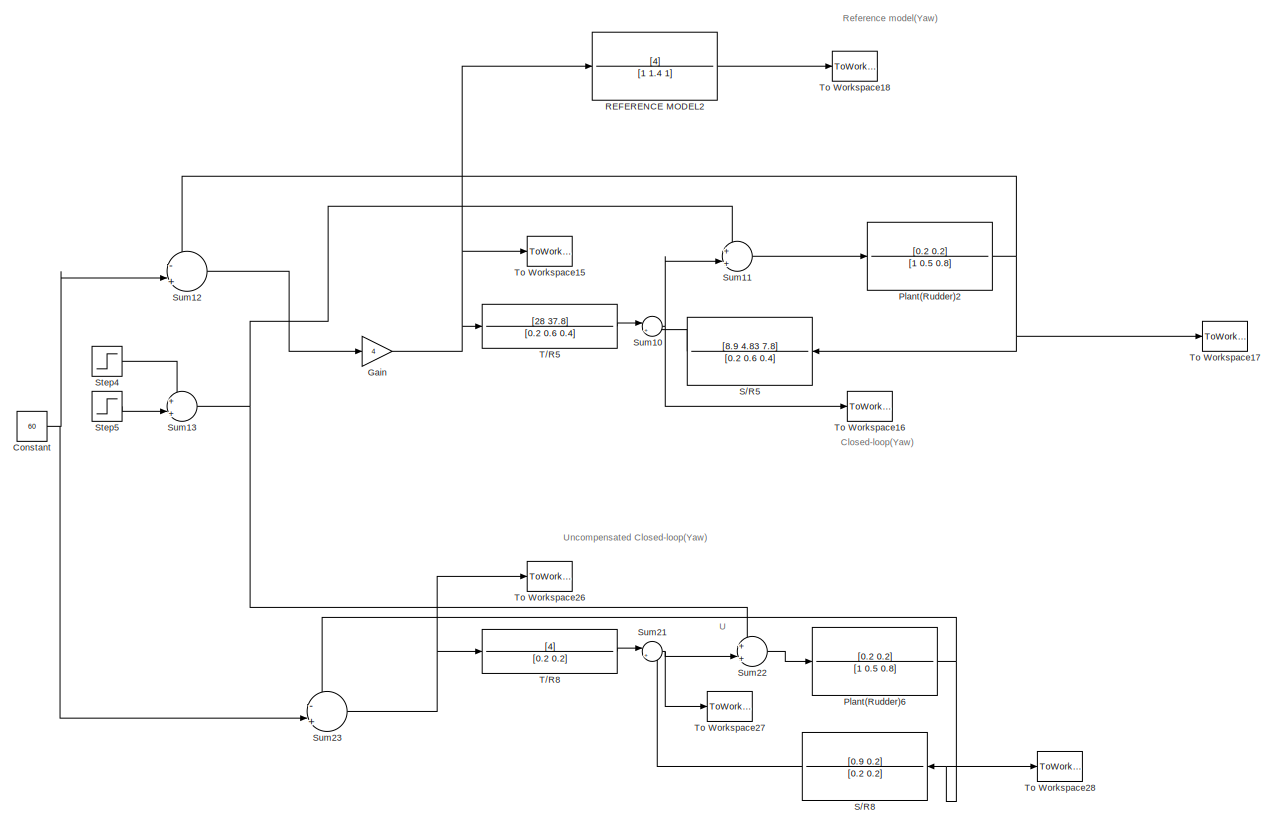
[diagram: root canvas - part 1/7, top right region]
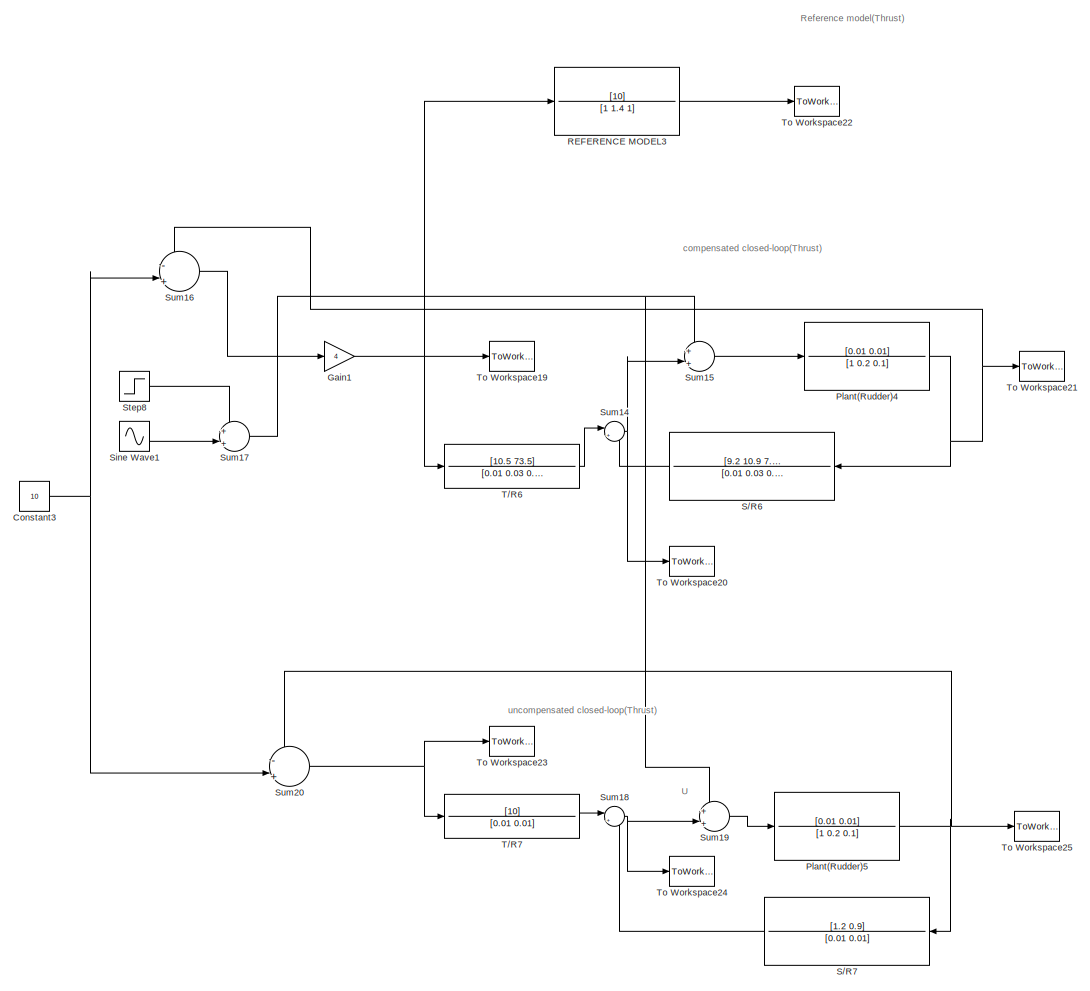
[diagram: root canvas - part 2/7, top center region]
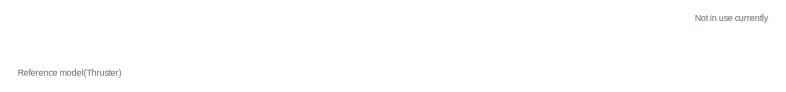
[diagram: root canvas - part 3/7, top left region]
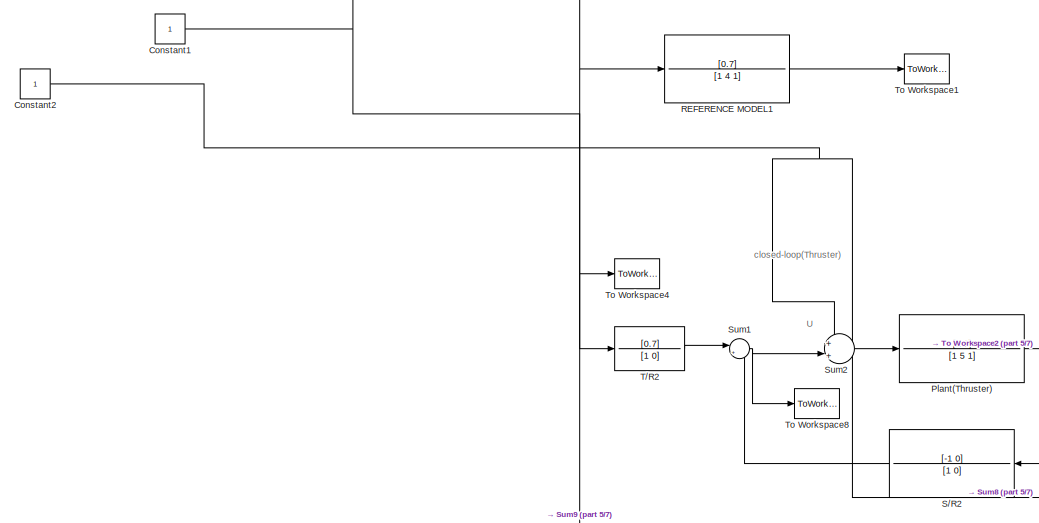
[diagram: root canvas - part 4/7, middle left region]
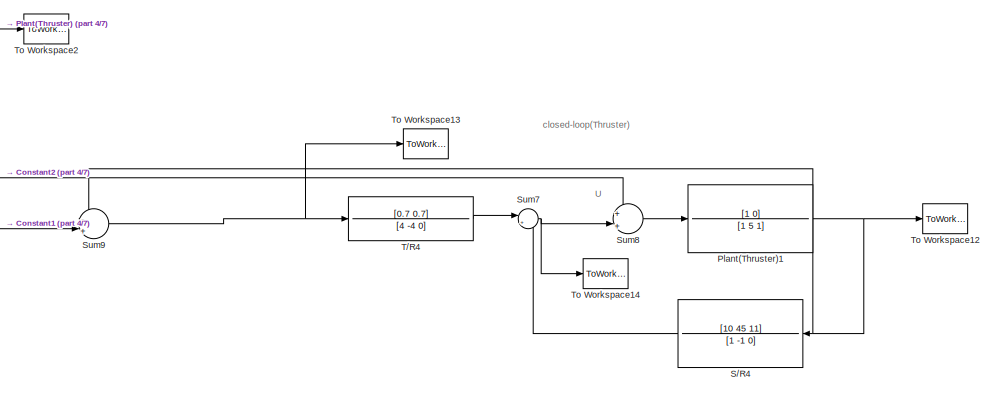
[diagram: root canvas - part 5/7, middle left region]
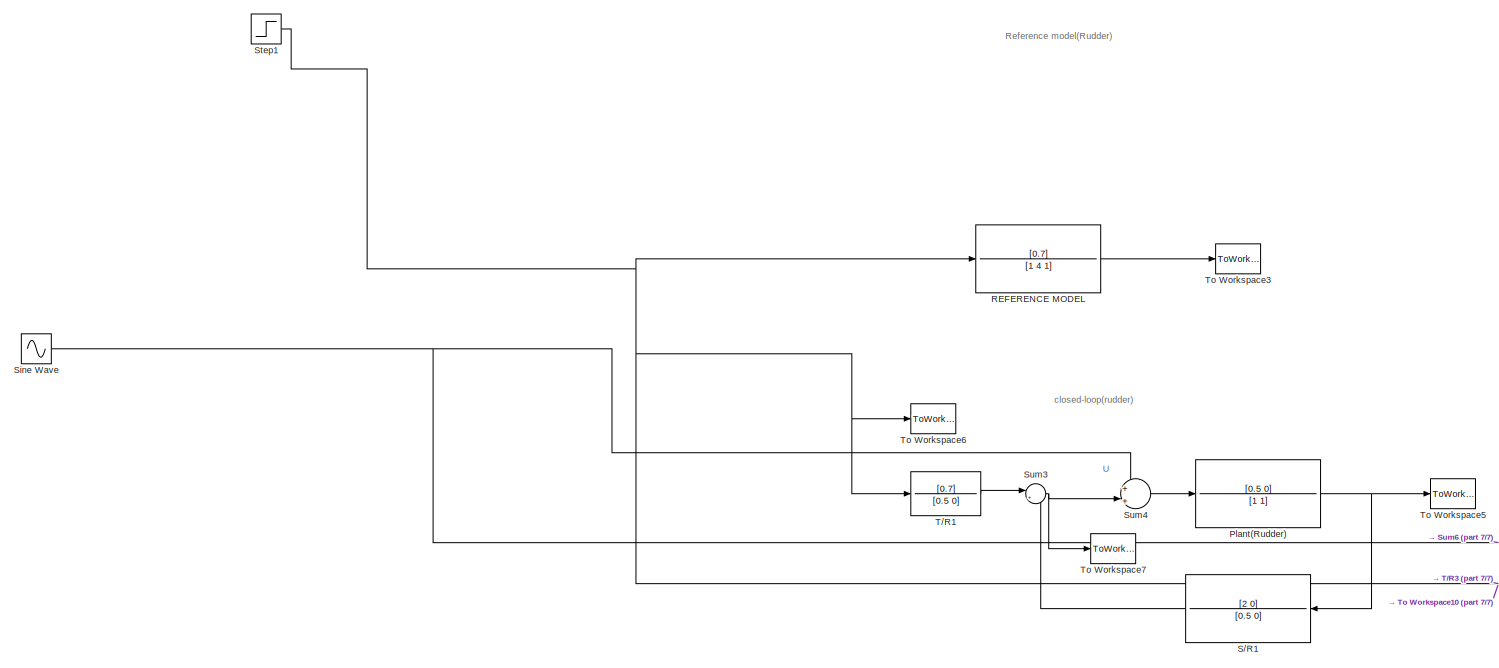
[diagram: root canvas - part 6/7, bottom left region]
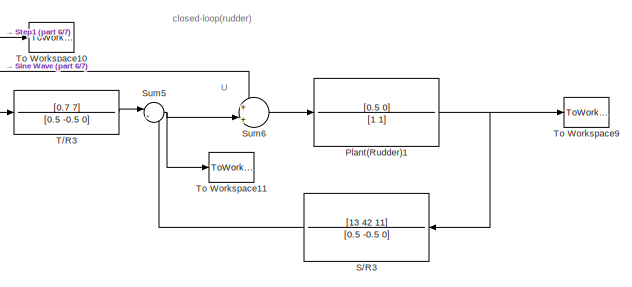
[diagram: root canvas - part 7/7, bottom left region]
MODEL slx_22593a30b830
KIND model
CONFIG AbsTol = auto
CONFIG EnableMultiTasking = off
CONFIG FixedStep = auto
CONFIG MaxStep = auto
CONFIG MinStep = auto
CONFIG RelTol = 1e-3
CONFIG SampleTimeConstraint = Unconstrained
CONFIG SolverName = VariableStepAuto
CONFIG StartTime = 0.0
CONFIG StopTime = 30
BLOCK [Constant] Constant
  Value = 60
BLOCK [Constant] Constant1
BLOCK [Constant] Constant2
BLOCK [Constant] Constant3
  Value = 10
BLOCK [Gain] Gain
  Gain = 4
BLOCK [Gain] Gain1
  Gain = 4
BLOCK [TransferFcn] Plant(Rudder)
  Numerator = [0.5 0]
BLOCK [TransferFcn] Plant(Rudder)1
  Numerator = [0.5 0]
BLOCK [TransferFcn] Plant(Rudder)2
  Denominator = [1 0.5 0.8]
  Numerator = [0.2 0.2]
BLOCK [TransferFcn] Plant(Rudder)4
  Denominator = [1 0.2 0.1]
  Numerator = [0.01 0.01]
BLOCK [TransferFcn] Plant(Rudder)5
  Denominator = [1 0.2 0.1]
  Numerator = [0.01 0.01]
BLOCK [TransferFcn] Plant(Rudder)6
  Denominator = [1 0.5 0.8]
  Numerator = [0.2 0.2]
BLOCK [TransferFcn] Plant(Thruster)
  Denominator = [1 5 1]
  Numerator = [1 0]
BLOCK [TransferFcn] Plant(Thruster)1
  Denominator = [1 5 1]
  Numerator = [1 0]
BLOCK [TransferFcn] REFERENCE MODEL
  Denominator = [1 4 1]
  Numerator = [0.7]
BLOCK [TransferFcn] REFERENCE MODEL1
  Denominator = [1 4 1]
  Numerator = [0.7]
BLOCK [TransferFcn] REFERENCE MODEL2
  Denominator = [1 1.4 1]
  Numerator = [4]
BLOCK [TransferFcn] REFERENCE MODEL3
  Denominator = [1 1.4 1]
  Numerator = [10]
BLOCK [TransferFcn] S//R1
  Denominator = [0.5 0]
  Numerator = [2 0]
BLOCK [TransferFcn] S//R2
  Denominator = [1 0]
  Numerator = [-1 0]
BLOCK [TransferFcn] S//R3
  Denominator = [0.5 -0.5 0]
  Numerator = [13 42 11]
BLOCK [TransferFcn] S//R4
  Denominator = [1 -1 0]
  Numerator = [10 45 11]
BLOCK [TransferFcn] S//R5
  Denominator = [0.2 0.6 0.4]
  Numerator = [8.9 4.83 7.8]
BLOCK [TransferFcn] S//R6
  Denominator = [0.01 0.03 0.02]
  Numerator = [9.2 10.9  7.1]
BLOCK [TransferFcn] S//R7
  Denominator = [0.01 0.01]
  Numerator = [1.2 0.9]
BLOCK [TransferFcn] S//R8
  Denominator = [0.2 0.2]
  Numerator = [0.9 0.2]
BLOCK [Sin] Sine Wave
  SampleTime = 0
BLOCK [Sin] Sine Wave1
  SampleTime = 0
BLOCK [Step] Step1
  After = 25
  SampleTime = 0
BLOCK [Step] Step4
  After = 4
  SampleTime = 0
BLOCK [Step] Step5
  After = 3
  SampleTime = 0
BLOCK [Step] Step8
  After = 4
  SampleTime = 0
BLOCK [Sum] Sum1
  Inputs = |+-
BLOCK [Sum] Sum10
  Inputs = |+-
BLOCK [Sum] Sum11
  Inputs = +|+||
BLOCK [Sum] Sum12
  Inputs = -|+||
BLOCK [Sum] Sum13
  Inputs = +|+||
BLOCK [Sum] Sum14
  Inputs = |+-
BLOCK [Sum] Sum15
  Inputs = +|+||
BLOCK [Sum] Sum16
  Inputs = -|+||
BLOCK [Sum] Sum17
  Inputs = +|+||
BLOCK [Sum] Sum18
  Inputs = |+-
BLOCK [Sum] Sum19
  Inputs = +|+||
BLOCK [Sum] Sum2
  Inputs = +|+||
BLOCK [Sum] Sum20
  Inputs = -|+||
BLOCK [Sum] Sum21
  Inputs = |+-
BLOCK [Sum] Sum22
  Inputs = +|+||
BLOCK [Sum] Sum23
  Inputs = -|+||
BLOCK [Sum] Sum3
  Inputs = |+-
BLOCK [Sum] Sum4
  Inputs = +|+||
BLOCK [Sum] Sum5
  Inputs = |+-
BLOCK [Sum] Sum6
  Inputs = +|+||
BLOCK [Sum] Sum7
  Inputs = |+-
BLOCK [Sum] Sum8
  Inputs = +|+||
BLOCK [Sum] Sum9
  Inputs = -|+||
BLOCK [TransferFcn] T//R1
  Denominator = [0.5 0]
  Numerator = [0.7]
BLOCK [TransferFcn] T//R2
  Denominator = [1 0]
  Numerator = [0.7]
BLOCK [TransferFcn] T//R3
  Denominator = [0.5 -0.5 0]
  Numerator = [0.7 7]
BLOCK [TransferFcn] T//R4
  Denominator = [4 -4 0]
  Numerator = [0.7 0.7]
BLOCK [TransferFcn] T//R5
  Denominator = [0.2 0.6 0.4]
  Numerator = [28 37.8]
BLOCK [TransferFcn] T//R6
  Denominator = [0.01 0.03 0.02]
  Numerator = [10.5 73.5]
BLOCK [TransferFcn] T//R7
  Denominator = [0.01 0.01]
  Numerator = [10]
BLOCK [TransferFcn] T//R8
  Denominator = [0.2 0.2]
  Numerator = [4]
BLOCK [ToWorkspace] To Workspace1
  FixptAsFi = on
  MaxDataPoints = inf
  SampleTime = -1
  VariableName = Ym1
BLOCK [ToWorkspace] To Workspace10
  FixptAsFi = on
  MaxDataPoints = inf
  SampleTime = -1
  VariableName = uc2
BLOCK [ToWorkspace] To Workspace11
  FixptAsFi = on
  MaxDataPoints = inf
  SampleTime = -1
  VariableName = U
BLOCK [ToWorkspace] To Workspace12
  FixptAsFi = on
  MaxDataPoints = inf
  SampleTime = -1
  VariableName = Y3
BLOCK [ToWorkspace] To Workspace13
  FixptAsFi = on
  MaxDataPoints = inf
  SampleTime = -1
  VariableName = uc3
BLOCK [ToWorkspace] To Workspace14
  FixptAsFi = on
  MaxDataPoints = inf
  SampleTime = -1
  VariableName = U3
BLOCK [ToWorkspace] To Workspace15
  FixptAsFi = on
  MaxDataPoints = inf
  SampleTime = -1
  VariableName = uc4
BLOCK [ToWorkspace] To Workspace16
  FixptAsFi = on
  MaxDataPoints = inf
  SampleTime = -1
  VariableName = U4
BLOCK [ToWorkspace] To Workspace17
  FixptAsFi = on
  MaxDataPoints = inf
  SampleTime = -1
  VariableName = Y4
BLOCK [ToWorkspace] To Workspace18
  FixptAsFi = on
  MaxDataPoints = inf
  SampleTime = -1
  VariableName = Ym2
BLOCK [ToWorkspace] To Workspace19
  FixptAsFi = on
  MaxDataPoints = inf
  SampleTime = -1
  VariableName = uc5
BLOCK [ToWorkspace] To Workspace2
  FixptAsFi = on
  MaxDataPoints = inf
  SampleTime = -1
  VariableName = Y2
BLOCK [ToWorkspace] To Workspace20
  FixptAsFi = on
  MaxDataPoints = inf
  SampleTime = -1
  VariableName = U5
BLOCK [ToWorkspace] To Workspace21
  FixptAsFi = on
  MaxDataPoints = inf
  SampleTime = -1
  VariableName = Y5
BLOCK [ToWorkspace] To Workspace22
  FixptAsFi = on
  MaxDataPoints = inf
  SampleTime = -1
  VariableName = Ym3
BLOCK [ToWorkspace] To Workspace23
  FixptAsFi = on
  MaxDataPoints = inf
  SampleTime = -1
  VariableName = uc6
BLOCK [ToWorkspace] To Workspace24
  FixptAsFi = on
  MaxDataPoints = inf
  SampleTime = -1
  VariableName = U6
BLOCK [ToWorkspace] To Workspace25
  FixptAsFi = on
  MaxDataPoints = inf
  SampleTime = -1
  VariableName = Y6
BLOCK [ToWorkspace] To Workspace26
  FixptAsFi = on
  MaxDataPoints = inf
  SampleTime = -1
  VariableName = uc7
BLOCK [ToWorkspace] To Workspace27
  FixptAsFi = on
  MaxDataPoints = inf
  SampleTime = -1
  VariableName = U7
BLOCK [ToWorkspace] To Workspace28
  FixptAsFi = on
  MaxDataPoints = inf
  SampleTime = -1
  VariableName = Y7
BLOCK [ToWorkspace] To Workspace3
  FixptAsFi = on
  MaxDataPoints = inf
  SampleTime = -1
  VariableName = Ym
BLOCK [ToWorkspace] To Workspace4
  FixptAsFi = on
  MaxDataPoints = inf
  SampleTime = -1
  VariableName = uc
BLOCK [ToWorkspace] To Workspace5
  FixptAsFi = on
  MaxDataPoints = inf
  SampleTime = -1
  VariableName = Y1
BLOCK [ToWorkspace] To Workspace6
  FixptAsFi = on
  MaxDataPoints = inf
  SampleTime = -1
  VariableName = uc1
BLOCK [ToWorkspace] To Workspace7
  FixptAsFi = on
  MaxDataPoints = inf
  SampleTime = -1
  VariableName = U1
BLOCK [ToWorkspace] To Workspace8
  FixptAsFi = on
  MaxDataPoints = inf
  SampleTime = -1
  VariableName = U2
BLOCK [ToWorkspace] To Workspace9
  FixptAsFi = on
  MaxDataPoints = inf
  SampleTime = -1
  VariableName = Y
ANNOTATION (root): Closed-loop(Yaw)
ANNOTATION (root): Uncompensated Closed-loop(Yaw)
ANNOTATION (root): closed-loop(Thruster)
ANNOTATION (root): closed-loop(rudder)
ANNOTATION (root): compensated closed-loop(Thrust)
ANNOTATION (root): uncompensated closed-loop(Thrust)
ANNOTATION (root): Not in use currently
ANNOTATION (root): Reference model(Rudder)
ANNOTATION (root): Reference model(Thrust)
ANNOTATION (root): Reference model(Thruster)
ANNOTATION (root): Reference model(Yaw)
ANNOTATION (root): U
NET Constant1:1 -> REFERENCE MODEL1:1, Sum9:2, T//R2:1, To Workspace4:1
NET Constant2:1 -> Sum2:1, Sum8:1
NET Constant3:1 -> Sum16:2, Sum20:2
NET Constant:1 -> Sum12:2, Sum23:2
NET Gain1:1 -> REFERENCE MODEL3:1, T//R6:1, To Workspace19:1
NET Gain:1 -> REFERENCE MODEL2:1, T//R5:1, To Workspace15:1
NET Plant(Rudder)1:1 -> S//R3:1, To Workspace9:1
NET Plant(Rudder)2:1 -> S//R5:1, Sum12:1, To Workspace17:1
NET Plant(Rudder)4:1 -> S//R6:1, Sum16:1, To Workspace21:1
NET Plant(Rudder)5:1 -> S//R7:1, Sum20:1, To Workspace25:1
NET Plant(Rudder)6:1 -> S//R8:1, Sum23:1, To Workspace28:1
NET Plant(Rudder):1 -> S//R1:1, To Workspace5:1
NET Plant(Thruster)1:1 -> S//R4:1, Sum9:1, To Workspace12:1
NET Plant(Thruster):1 -> S//R2:1, To Workspace2:1
LINE REFERENCE MODEL1:1 -> To Workspace1:1
LINE REFERENCE MODEL2:1 -> To Workspace18:1
LINE REFERENCE MODEL3:1 -> To Workspace22:1
LINE REFERENCE MODEL:1 -> To Workspace3:1
LINE S//R1:1 -> Sum3:2
LINE S//R2:1 -> Sum1:2
LINE S//R3:1 -> Sum5:2
LINE S//R4:1 -> Sum7:2
LINE S//R5:1 -> Sum10:2
LINE S//R6:1 -> Sum14:2
LINE S//R7:1 -> Sum18:2
LINE S//R8:1 -> Sum21:2
LINE Sine Wave1:1 -> Sum17:2
NET Sine Wave:1 -> Sum4:1, Sum6:1
NET Step1:1 -> REFERENCE MODEL:1, T//R1:1, T//R3:1, To Workspace10:1, To Workspace6:1
LINE Step4:1 -> Sum13:1
LINE Step5:1 -> Sum13:2
LINE Step8:1 -> Sum17:1
NET Sum10:1 -> Sum11:2, To Workspace16:1
LINE Sum11:1 -> Plant(Rudder)2:1
LINE Sum12:1 -> Gain:1
NET Sum13:1 -> Sum11:1, Sum22:1
NET Sum14:1 -> Sum15:2, To Workspace20:1
LINE Sum15:1 -> Plant(Rudder)4:1
LINE Sum16:1 -> Gain1:1
NET Sum17:1 -> Sum15:1, Sum19:1
NET Sum18:1 -> Sum19:2, To Workspace24:1
LINE Sum19:1 -> Plant(Rudder)5:1
NET Sum1:1 -> Sum2:2, To Workspace8:1
NET Sum20:1 -> T//R7:1, To Workspace23:1
NET Sum21:1 -> Sum22:2, To Workspace27:1
LINE Sum22:1 -> Plant(Rudder)6:1
NET Sum23:1 -> T//R8:1, To Workspace26:1
LINE Sum2:1 -> Plant(Thruster):1
NET Sum3:1 -> Sum4:2, To Workspace7:1
LINE Sum4:1 -> Plant(Rudder):1
NET Sum5:1 -> Sum6:2, To Workspace11:1
LINE Sum6:1 -> Plant(Rudder)1:1
NET Sum7:1 -> Sum8:2, To Workspace14:1
LINE Sum8:1 -> Plant(Thruster)1:1
NET Sum9:1 -> T//R4:1, To Workspace13:1
LINE T//R1:1 -> Sum3:1
LINE T//R2:1 -> Sum1:1
LINE T//R3:1 -> Sum5:1
LINE T//R4:1 -> Sum7:1
LINE T//R5:1 -> Sum10:1
LINE T//R6:1 -> Sum14:1
LINE T//R7:1 -> Sum18:1
LINE T//R8:1 -> Sum21:1
note: NET lines group one-source signal fan-out (src -> all destinations, sorted); 1:1 wires keep LINE
